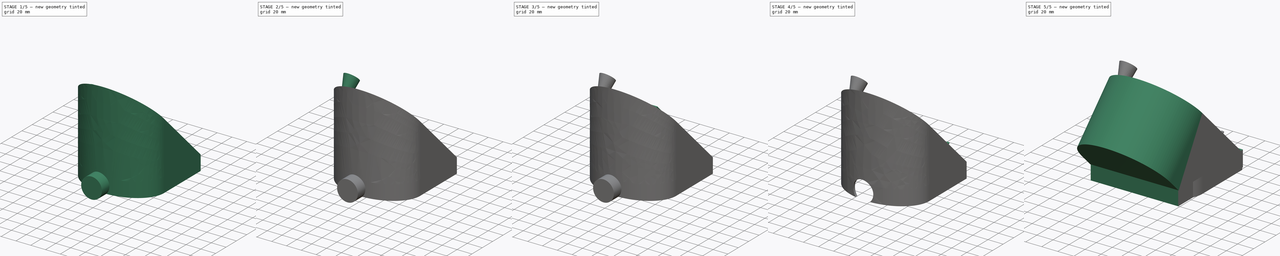
[diagram: build sequence overview — one tinted view per stage of 5, left to right]
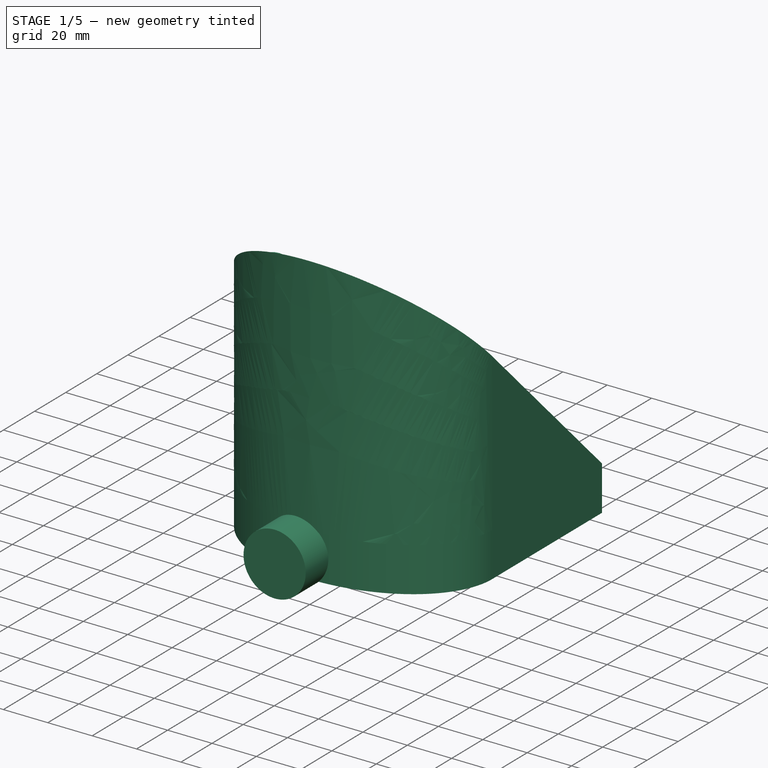
[diagram: stage 1 of 5 — iso view after this stage's code; geometry added in this stage tinted green]
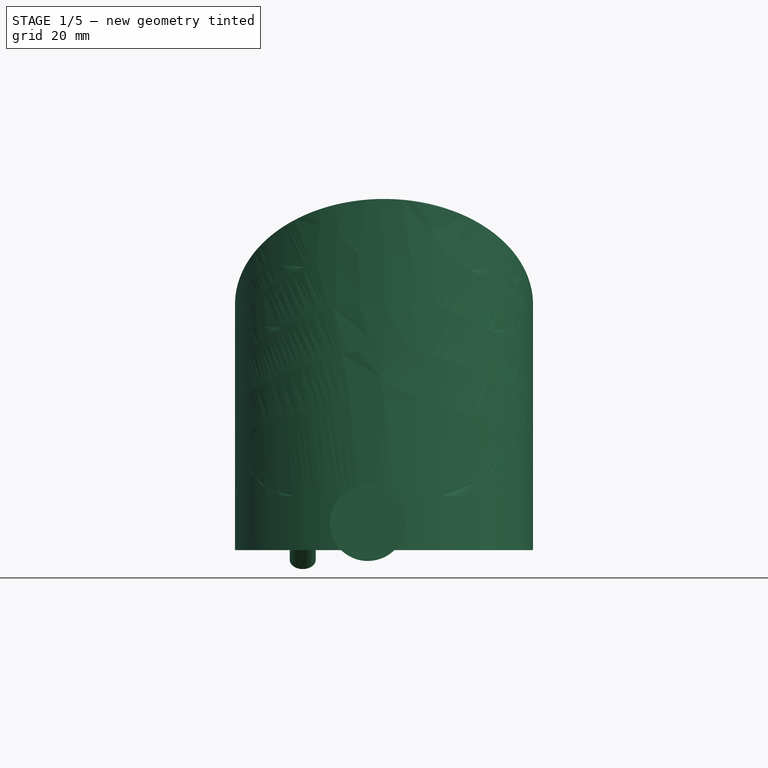
[diagram: stage 1 of 5 — front view after this stage's code; geometry added in this stage tinted green]
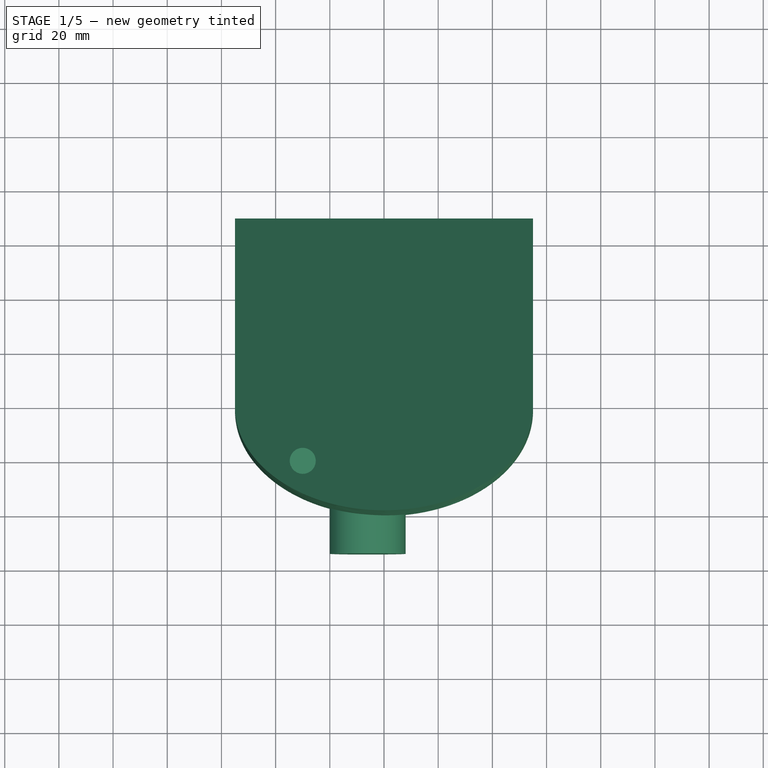
[diagram: stage 1 of 5 — top view after this stage's code; geometry added in this stage tinted green]
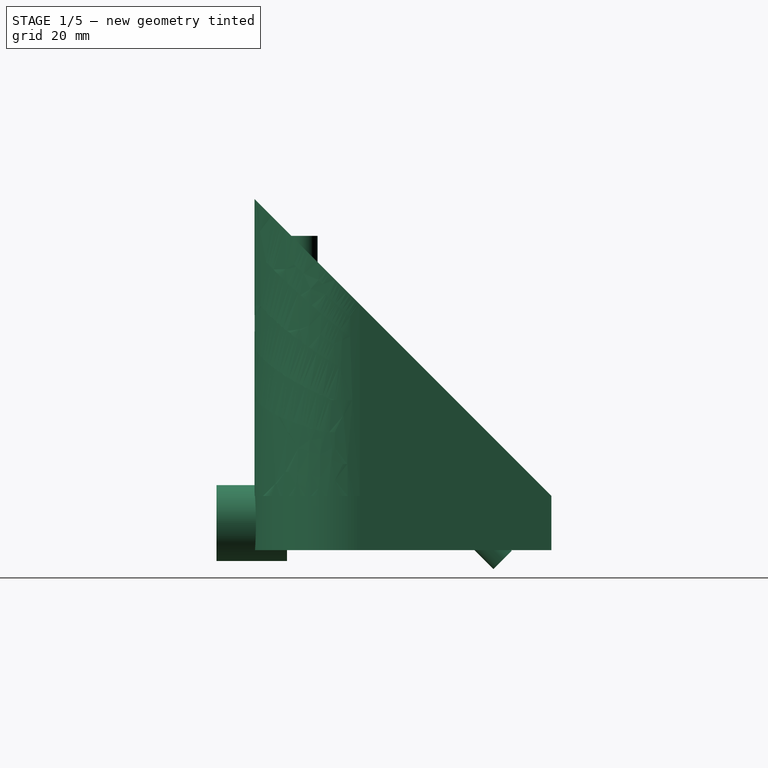
[diagram: stage 1 of 5 — right view after this stage's code; geometry added in this stage tinted green]
FCSTD DOCUMENT  (FreeCAD 0.15R4671 (Git))
Label: Carcasa modificada para sensor IR
License: All rights reserved
LicenseURL: http://en.wikipedia.org/wiki/All_rights_reserved
objects: Part::Box×10, Sketcher::SketchObject×10, Part::Cut×9, Part::Cylinder×8, Part::MultiFuse×8, PartDesign::Pocket×2, Part::Loft×2, Part::Sweep×2, Part::Circle×1, PartDesign::Pad×1, Part::FeaturePython×1
note: 57 computed .brp shape members not serialized (recipe doc carries the construction recipe); baked Part::Feature solids carry a one-line shape summary decoded from their .brp

FEATURE [PartDesign::Pocket] Pocket
  Length = 110
  Type = 0
FEATURE [Sketcher::SketchObject] Sketch011
  Placement = pos=(0,0,80) rot=(1,0,0;3.14159rad)
  sketch-geometry (1):
    g0: Circle CenterX=-30 CenterY=-18.5 CenterZ=0 NormalX=0 NormalY=0 NormalZ=1 Radius=4.8
  constraints (3):
    c: Radius(g0) = 4.8
    c: DistanceX(g0) = -30
    c: DistanceY(g0) = -18.5
FEATURE [Part::Cylinder] Cylinder003  label="Cilindro003"
  Angle = 360
  Height = 28
  Placement = pos=(-30,18.5,78) rot=(0,0,1;0rad)
  Radius = 4.8
FEATURE [Sketcher::SketchObject] Sketch012
  Placement = pos=(0,59.8185,59.8185) rot=(0,0.382683,0.92388;3.14159rad)
  sketch-geometry (16):
    g0: LineSegment StartX=2 StartY=-37 StartZ=0 EndX=30 EndY=-37 EndZ=0
    g1: LineSegment StartX=30 StartY=-37 StartZ=0 EndX=30 EndY=-53 EndZ=0
    g2: LineSegment StartX=30 StartY=-53 StartZ=0 EndX=2 EndY=-53 EndZ=0
    g3: LineSegment StartX=2 StartY=-53 StartZ=0 EndX=2 EndY=-37 EndZ=0
    g4: LineSegment StartX=40 StartY=-31 StartZ=0 EndX=46.8 EndY=-31 EndZ=0
    g5: LineSegment StartX=46.8 StartY=-31 StartZ=0 EndX=46.8 EndY=-37.8 EndZ=0
    g6: LineSegment StartX=46.8 StartY=-37.8 StartZ=0 EndX=40 EndY=-37.8 EndZ=0
    g7: LineSegment StartX=40 StartY=-37.8 StartZ=0 EndX=40 EndY=-31 EndZ=0
    g8: LineSegment StartX=40 StartY=-42 StartZ=0 EndX=46.8 EndY=-42 EndZ=0
    g9: LineSegment StartX=46.8 StartY=-42 StartZ=0 EndX=46.8 EndY=-48.8 EndZ=0
    g10: LineSegment StartX=46.8 StartY=-48.8 StartZ=0 EndX=40 EndY=-48.8 EndZ=0
    g11: LineSegment StartX=40 StartY=-48.8 StartZ=0 EndX=40 EndY=-42 EndZ=0
    g12: LineSegment StartX=40 StartY=-53 StartZ=0 EndX=46.8 EndY=-53 EndZ=0
    g13: LineSegment StartX=46.8 StartY=-53 StartZ=0 EndX=46.8 EndY=-59.8 EndZ=0
    g14: LineSegment StartX=46.8 StartY=-59.8 StartZ=0 EndX=40 EndY=-59.8 EndZ=0
    g15: LineSegment StartX=40 StartY=-59.8 StartZ=0 EndX=40 EndY=-53 EndZ=0
  constraints (48):
    c: Coincident(g0,g1)
    c: Coincident(g1,g2)
    c: Coincident(g2,g3)
    c: Coincident(g3,g0)
    c: Horizontal(g0)
    c: Horizontal(g2)
    c: Vertical(g1)
    c: Vertical(g3)
    c: DistanceX(g0) = 2
    c: DistanceX(g2) = -28
    c: DistanceY(g1) = -16
    c: DistanceY(g0) = -37
    c: Coincident(g4,g5)
    c: Coincident(g5,g6)
    c: Coincident(g6,g7)
    c: Coincident(g7,g4)
    c: Horizontal(g4)
    c: Horizontal(g6)
    c: Vertical(g5)
    c: Vertical(g7)
    c: Coincident(g8,g9)
    c: Coincident(g9,g10)
    c: Coincident(g10,g11)
    c: Coincident(g11,g8)
    c: Horizontal(g8)
    c: Horizontal(g10)
    c: Vertical(g9)
    c: Vertical(g11)
    c: Coincident(g12,g13)
    c: Coincident(g13,g14)
    c: Coincident(g14,g15)
    c: Coincident(g15,g12)
    c: Horizontal(g12)
    c: Horizontal(g14)
    c: Vertical(g13)
    c: Vertical(g15)
    c: DistanceX(g4) = 6.8
    c: DistanceY(g7) = 6.8
    c: DistanceY(g4) = -31
    c: DistanceX(g4) = 40
    c: DistanceX(g8) = 6.8
    c: DistanceY(g11) = 6.8
    c: DistanceX(g8) = 40
    c: DistanceY(g8) = -42
    c: DistanceX(g12) = 6.8
    c: DistanceY(g15) = 6.8
    c: DistanceY(g12) = -53
    c: DistanceX(g12) = 40
FEATURE [Sketcher::SketchObject] Sketch013
  Placement = pos=(0,0,10) rot=(1,0,0;3.14159rad)
  Support = -> Pocket [Face3]
  sketch-geometry (8):
    g0: ArcOfEllipse CenterX=0 CenterY=-38.9 CenterZ=0 NormalX=0 NormalY=0 NormalZ=1 MajorRadius=55 MinorRadius=38.7814 AngleXU=0 StartAngle=0 EndAngle=3.14159
    g1: LineSegment [constr] StartX=55 StartY=-38.9 StartZ=0 EndX=-55 EndY=-38.9 EndZ=0
    g2: LineSegment [constr] StartX=0 StartY=-0.118561 StartZ=0 EndX=0 EndY=-77.6814 EndZ=0
    g3: GeomPoint [constr] X=39 Y=-38.9 Z=0
    g4: GeomPoint [constr] X=-39 Y=-38.9 Z=0
    g5: LineSegment StartX=55 StartY=-38.9 StartZ=0 EndX=55 EndY=-109.6 EndZ=0
    g6: LineSegment StartX=55 StartY=-109.6 StartZ=0 EndX=-55 EndY=-109.6 EndZ=0
    g7: LineSegment StartX=-55 StartY=-109.6 StartZ=0 EndX=-55 EndY=-38.9 EndZ=0
  constraints (17):
    c: InternalAlignment(g1-g4 -> g0) x4
    c: Coincident(g0,g1)
    c: DistanceY(g0) = -38.9
    c: DistanceY(g0) = -38.9
    c: DistanceY(g0) = -38.9
    c: DistanceY(g4) = -38.9
    c: DistanceX(g0) = -55
    c: DistanceX(g0) = 55
    c: DistanceX(g3) = 39
    c: Coincident(g5,g6)
    c: Coincident(g6,g7)
    c: Horizontal(g6)
    c: Vertical(g5)
    c: Vertical(g7)
    c: Coincident(g0,g5)
    c: DistanceY(g7) = 70.7
    c: Coincident(g0,g7)
FEATURE [PartDesign::Pad] Pad
  Length = 20
  Length2 = 100
  Sketch = -> Sketch013
  Type = 0
FEATURE [Part::Sweep] Sweep001
  Frenet = false
  Sections = -> [Sketch011]
  Solid = true
  Spine = -> Sketch [Edge1,Edge2,Edge3]
  Transition = 1
FEATURE [Part::MultiFuse] Fusion006
  Shapes = -> [Sweep001,Cylinder003]
FEATURE [Part::Box] Box017  label="Cubo017"
  Height = 10.5
  Length = 7
  Placement = pos=(-27,37,34) rot=(-1,0,0;0.785398rad)
  Width = 6.1
FEATURE [Part::Cylinder] Cylinder007  label="Cilindro007"
  Angle = 360
  Height = 20
  Placement = pos=(-40,44.2,21.8) rot=(0,1,0;1.5708rad)
  Radius = 1.7
FEATURE [Part::MultiFuse] Fusion018
  Shapes = -> [Box017,Cylinder007]
FEATURE [Part::Cylinder] Cylinder008  label="Cilindro008"
  Angle = 360
  Height = 26
  Placement = pos=(-6,12,0) rot=(1,0,0;1.5708rad)
  Radius = 14
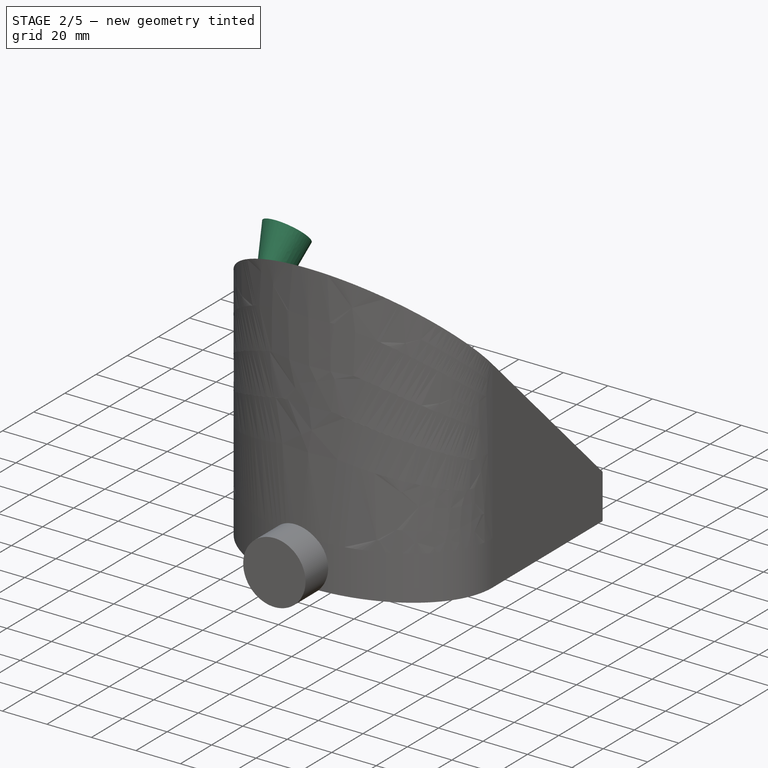
[diagram: stage 2 of 5 — iso view after this stage's code; geometry added in this stage tinted green]
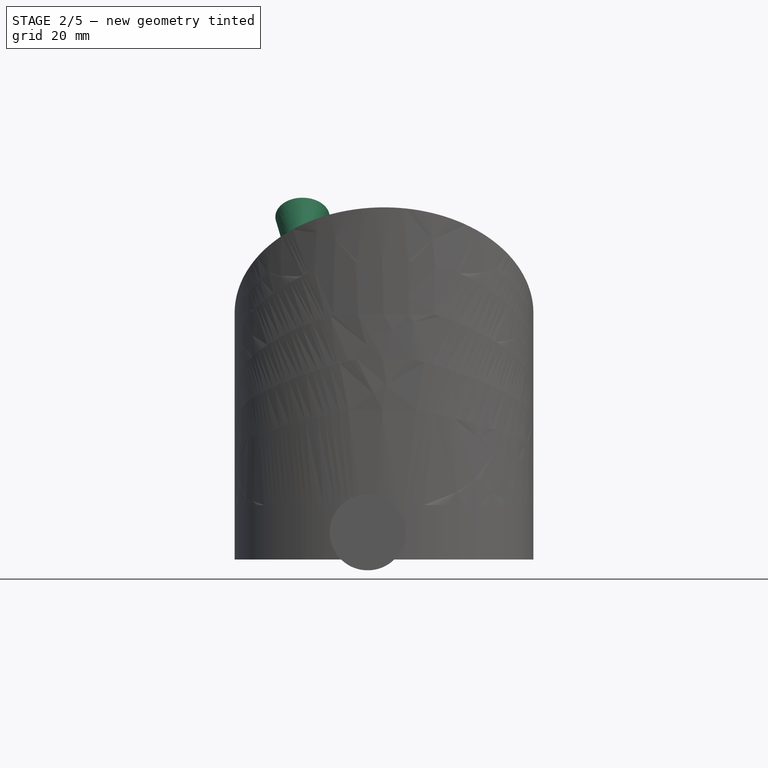
[diagram: stage 2 of 5 — front view after this stage's code; geometry added in this stage tinted green]
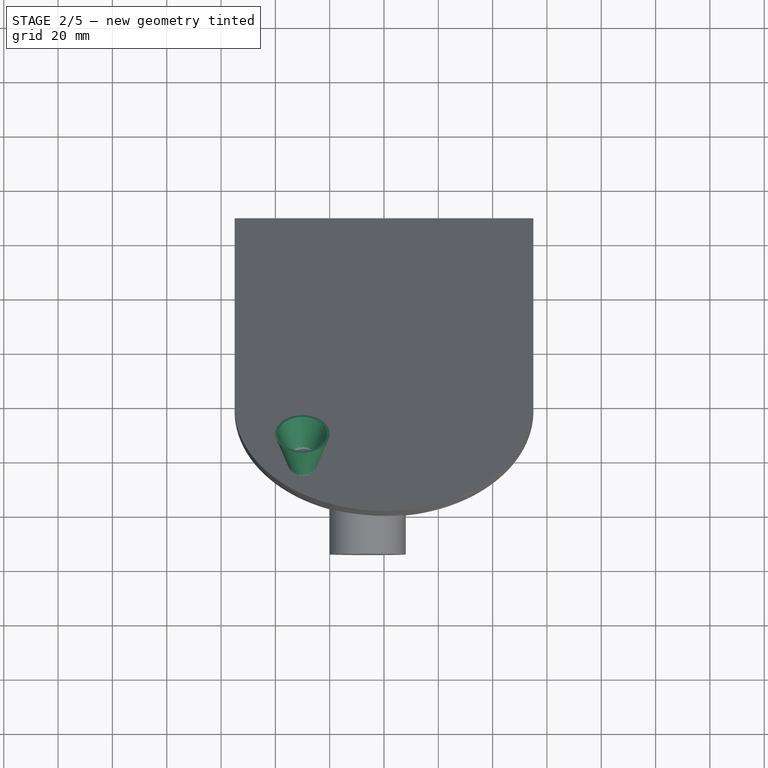
[diagram: stage 2 of 5 — top view after this stage's code; geometry added in this stage tinted green]
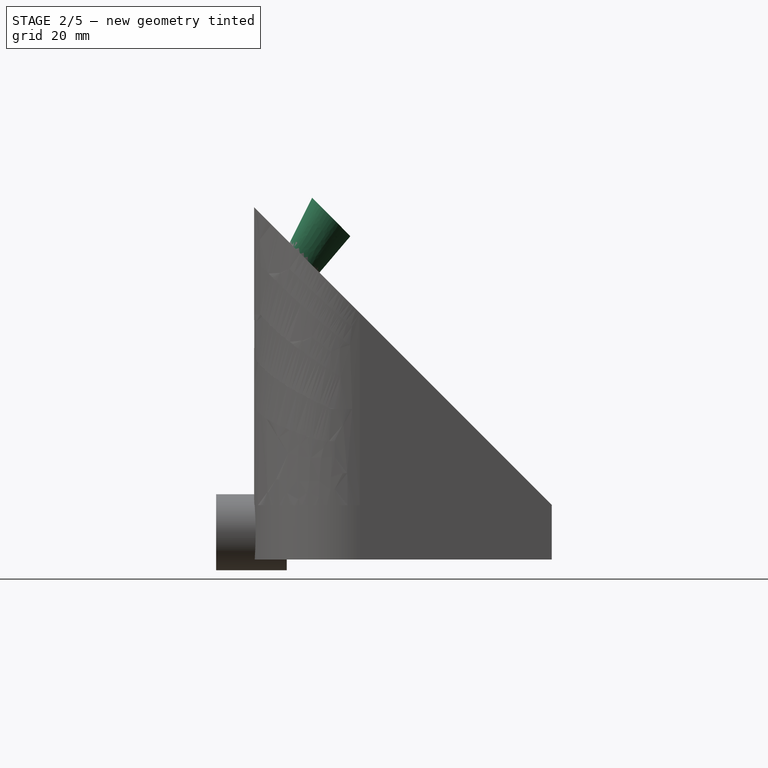
[diagram: stage 2 of 5 — right view after this stage's code; geometry added in this stage tinted green]
FEATURE [Part::Cylinder] Cylinder001  label="Cilindro001"
  Angle = 360
  Height = 30
  Placement = pos=(-30,18.5,80) rot=(0,0,1;0rad)
  Radius = 5.5
FEATURE [Part::Box] Box002  label="Cubo002"
  Height = 30
  Length = 200
  Placement = pos=(-101,0,119.5) rot=(-1,0,0;0.785398rad)
  Width = 200
FEATURE [Sketcher::SketchObject] Sketch003
  Placement = pos=(0,59.8185,59.8185) rot=(0,0.382683,0.92388;3.14159rad)
  sketch-geometry (8):
    g0: LineSegment StartX=-31 StartY=19.7 StartZ=0 EndX=11 EndY=19.7 EndZ=0
    g1: LineSegment StartX=-31 StartY=19.7 StartZ=0 EndX=-31 EndY=40.3 EndZ=0
    g2: LineSegment StartX=-31 StartY=40.3 StartZ=0 EndX=11 EndY=40.3 EndZ=0
    g3: LineSegment StartX=11 StartY=40.3 StartZ=0 EndX=11 EndY=34 EndZ=0
    g4: LineSegment StartX=11 StartY=26 StartZ=0 EndX=26 EndY=26 EndZ=0
    g5: LineSegment StartX=26 StartY=26 StartZ=0 EndX=26 EndY=34 EndZ=0
    g6: LineSegment StartX=26 StartY=34 StartZ=0 EndX=11 EndY=34 EndZ=0
    g7: LineSegment StartX=11 StartY=26 StartZ=0 EndX=11 EndY=19.7 EndZ=0
  constraints (24):
    c: Horizontal(g0)
    c: DistanceX(g0) = -31
    c: DistanceX(g0) = 11
    c: DistanceY(g0) = 19.7
    c: Vertical(g1)
    c: Coincident(g1,g2)
    c: Horizontal(g2)
    c: Coincident(g2,g3)
    c: Vertical(g3)
    c: Coincident(g0,g7)
    c: Coincident(g1,g0)
    c: Coincident(g4,g5)
    c: Coincident(g5,g6)
    c: Horizontal(g4)
    c: Horizontal(g6)
    c: Vertical(g5)
    c: DistanceY(g6) = 34
    c: DistanceX(g4) = 26
    c: PointOnObject(g3,g6)
    c: Coincident(g7,g4)
    c: Tangent(g3,g7)
    c: DistanceY(g2) = 40.3
    c: DistanceY(g4) = 26
    c: Coincident(g3,g6)
FEATURE [Part::Cut] Cut002  label="Tubo 2, mantener por si acaso"
  Base = -> Cylinder001
  Tool = -> Box002
FEATURE [Sketcher::SketchObject] Sketch006
  Placement = pos=(0,59.75,59.75) rot=(0,0.382683,0.92388;3.14159rad)
  Support = -> Cut002 [Face2]
  sketch-geometry (5):
    g0: Ellipse CenterX=30 CenterY=58.35 CenterZ=0 NormalX=0 NormalY=0 NormalZ=1 MajorRadius=7.75 MinorRadius=5.5 AngleXU=1.5708
    g1: LineSegment [constr] StartX=30 StartY=66.1 StartZ=0 EndX=30 EndY=50.6 EndZ=0
    g2: LineSegment [constr] StartX=24.5 StartY=58.35 StartZ=0 EndX=35.5 EndY=58.35 EndZ=0
    g3: GeomPoint [constr] X=30 Y=63.8101 Z=0
    g4: GeomPoint [constr] X=30 Y=52.8899 Z=0
  constraints (6):
    c: InternalAlignment(g1-g4 -> g0) x4
    c: DistanceX(g0) = 30
    c: DistanceY(g0) = 58.35
    c: DistanceY(g1) = 66.1
    c: DistanceY(g2) = 58.35
    c: DistanceX(g2) = 24.5
FEATURE [Part::Circle] Circle  label="Circunferencia"
  Angle0 = 0
  Angle1 = 360
  Placement = pos=(-30,28.39,116.11) rot=(-0.358158,-0.358158,-0.862233;1.71849rad)
  Radius = 10
FEATURE [Part::Loft] Loft
  Closed = false
  Ruled = false
  Sections = -> [Sketch006,Circle]
  Solid = true
FEATURE [Sketcher::SketchObject] Sketch007
  Placement = pos=(0,59.75,59.75) rot=(1,0,0;2.35619rad)
  Support = -> Loft [Face2]
  sketch-geometry (5):
    g0: Ellipse CenterX=-30 CenterY=58.4 CenterZ=0 NormalX=0 NormalY=0 NormalZ=1 MajorRadius=6.7 MinorRadius=4.8 AngleXU=1.5708
    g1: LineSegment [constr] StartX=-30 StartY=65.1 StartZ=0 EndX=-30 EndY=51.7 EndZ=0
    g2: LineSegment [constr] StartX=-34.8 StartY=58.4 StartZ=0 EndX=-25.2 EndY=58.4 EndZ=0
    g3: GeomPoint [constr] X=-30 Y=63.0744 Z=0
    g4: GeomPoint [constr] X=-30 Y=53.7256 Z=0
  constraints (6):
    c: InternalAlignment(g1-g4 -> g0) x4
    c: Horizontal(g2)
    c: DistanceX(g0) = -30
    c: DistanceX(g2) = -25.2
    c: DistanceY(g0) = 58.4
    c: DistanceY(g1) = 51.7
FEATURE [Sketcher::SketchObject] Sketch008
  Placement = pos=(-5.5495e-06,72.3062,72.0179) rot=(0,0.383606,0.923497;3.14159rad)
  Support = -> Loft [Face3]
  sketch-geometry (1):
    g0: Circle CenterX=30 CenterY=62.25 CenterZ=0 NormalX=0 NormalY=0 NormalZ=1 Radius=9
  constraints (3):
    c: DistanceX(g0) = 30
    c: DistanceY(g0) = 62.25
    c: Radius(g0) = 9
FEATURE [Part::Loft] Loft001
  Closed = false
  Ruled = false
  Sections = -> [Sketch008,Sketch007]
  Solid = true
FEATURE [Part::Cut] Cut003
  Base = -> Loft
  Tool = -> Loft001
FEATURE [Part::Cut] Cut007
  Base = -> Pad
  Tool = -> Fusion006
FEATURE [Part::MultiFuse] Fusion015
  Shapes = -> [Cut007,Cut003]
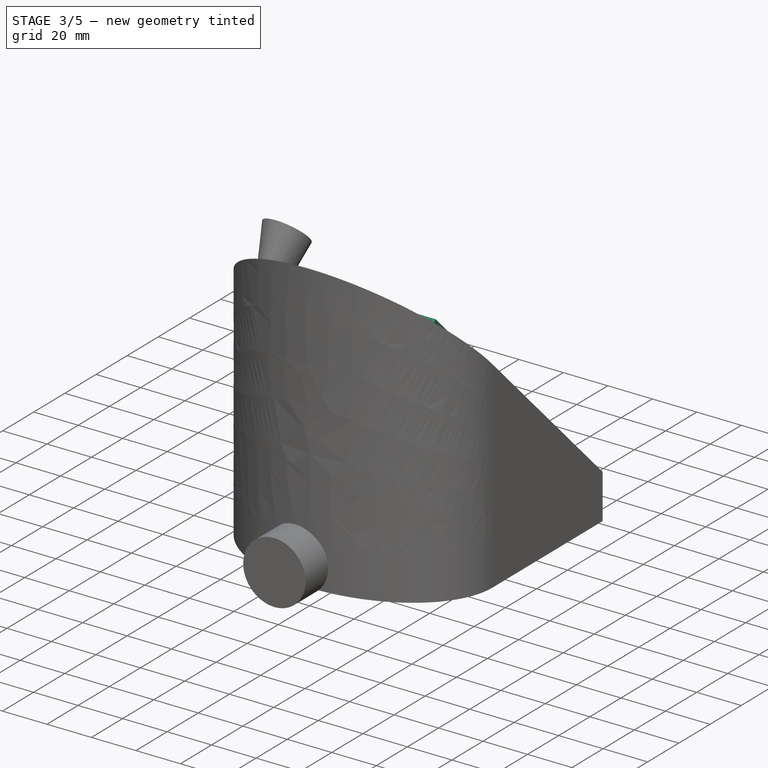
[diagram: stage 3 of 5 — iso view after this stage's code; geometry added in this stage tinted green]
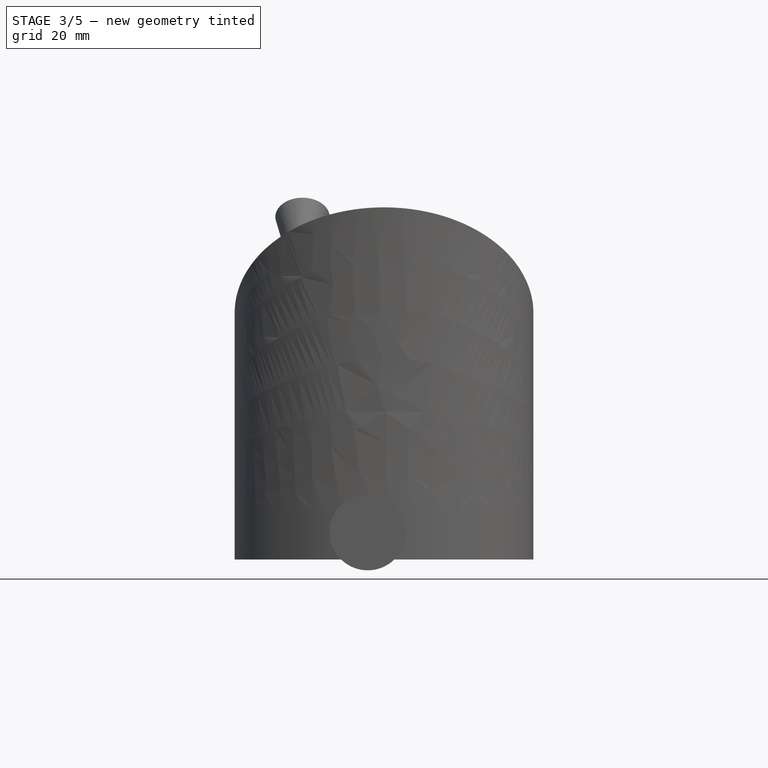
[diagram: stage 3 of 5 — front view after this stage's code; geometry added in this stage tinted green]
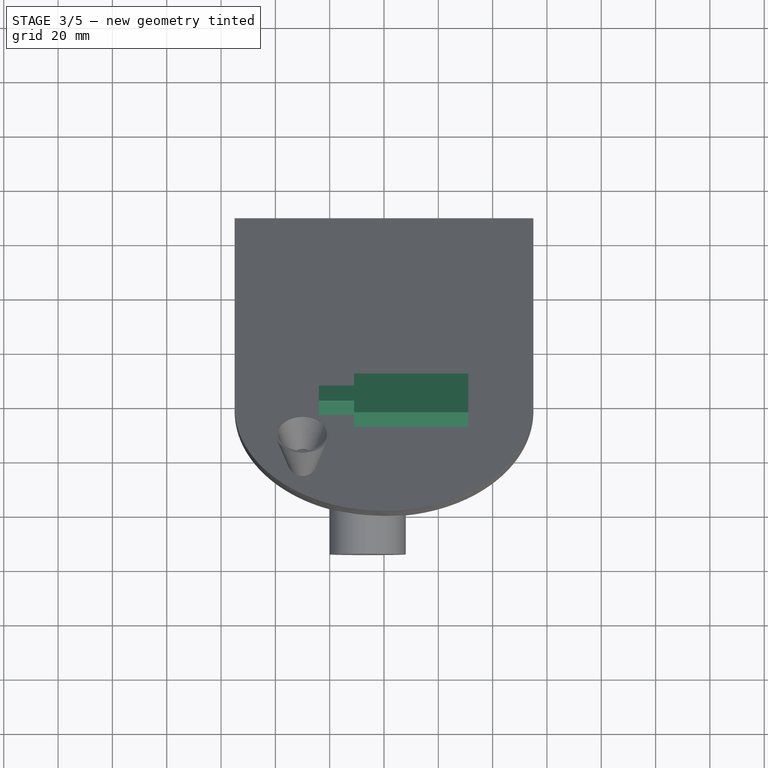
[diagram: stage 3 of 5 — top view after this stage's code; geometry added in this stage tinted green]
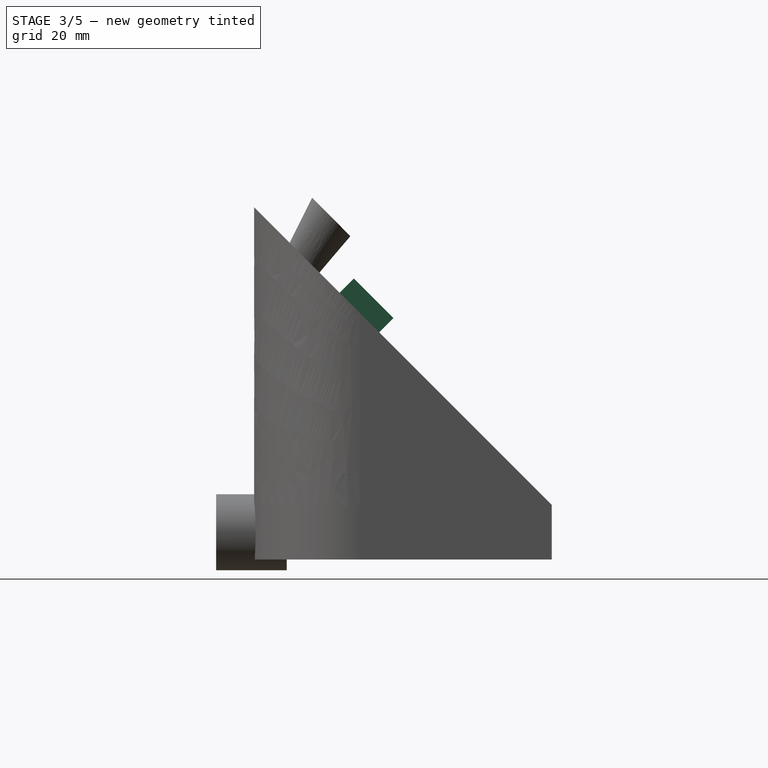
[diagram: stage 3 of 5 — right view after this stage's code; geometry added in this stage tinted green]
FEATURE [Part::FeaturePython] Clone  label="Clone of Pad"  # Draft clone (typed FeaturePython)
  Objects = -> [Pad]
  Placement = pos=(0,3,-1) rot=(0,1,0;3.14159rad)
  Scale = (0.95,0.95,-0.95)
FEATURE [Part::Box] Box008  label="Cubo008"
  Height = 130
  Length = 20
  Placement = pos=(-40,88.5,-26.2) rot=(1,0,0;0.785398rad)
  Width = 22
FEATURE [Part::Box] Box009  label="Cubo009"
  Height = 100
  Length = 140
  Placement = pos=(-55,-10,27) rot=(1,0,0;0.785398rad)
  Width = 100
FEATURE [Part::Box] Box011  label="Cubo011"
  Height = 20.6
  Length = 42
  Placement = pos=(-11,23,50.6) rot=(1,0,0;0.785398rad)
  Width = 40
FEATURE [Part::Box] Box012  label="Cubo012"
  Height = 8
  Length = 13
  Placement = pos=(-24,18.5,55) rot=(1,0,0;0.785398rad)
  Width = 40
FEATURE [Part::MultiFuse] Fusion011
  Shapes = -> [Box012,Box011]
FEATURE [Part::MultiFuse] Fusion014
  Shapes = -> [Box008,Box009]
FEATURE [Part::Cut] Cut006
  Base = -> Clone
  Tool = -> Fusion014
FEATURE [Part::Cut] Cut008
  Base = -> Fusion015
  Tool = -> Cut006
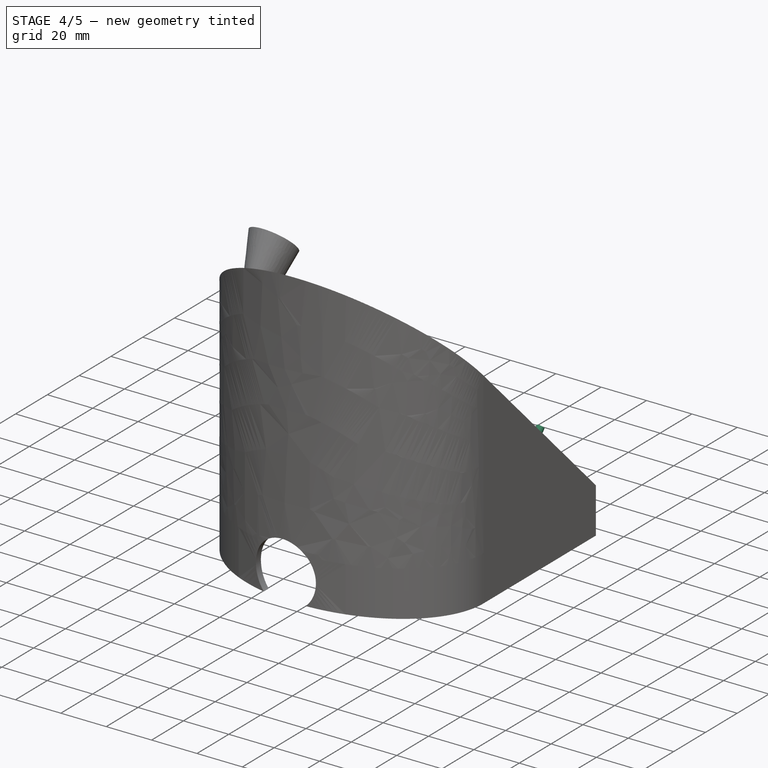
[diagram: stage 4 of 5 — iso view after this stage's code; geometry added in this stage tinted green]
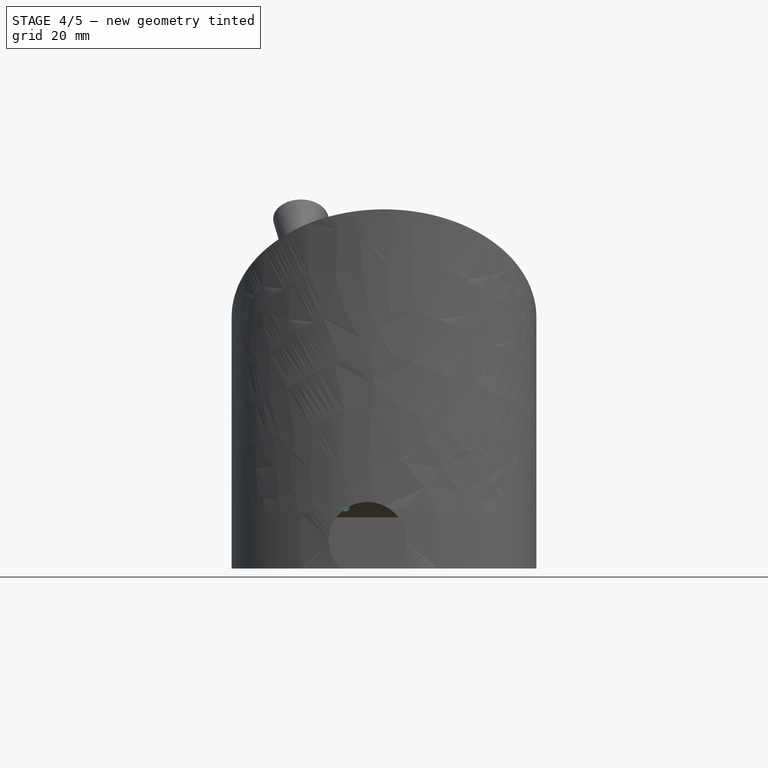
[diagram: stage 4 of 5 — front view after this stage's code; geometry added in this stage tinted green]
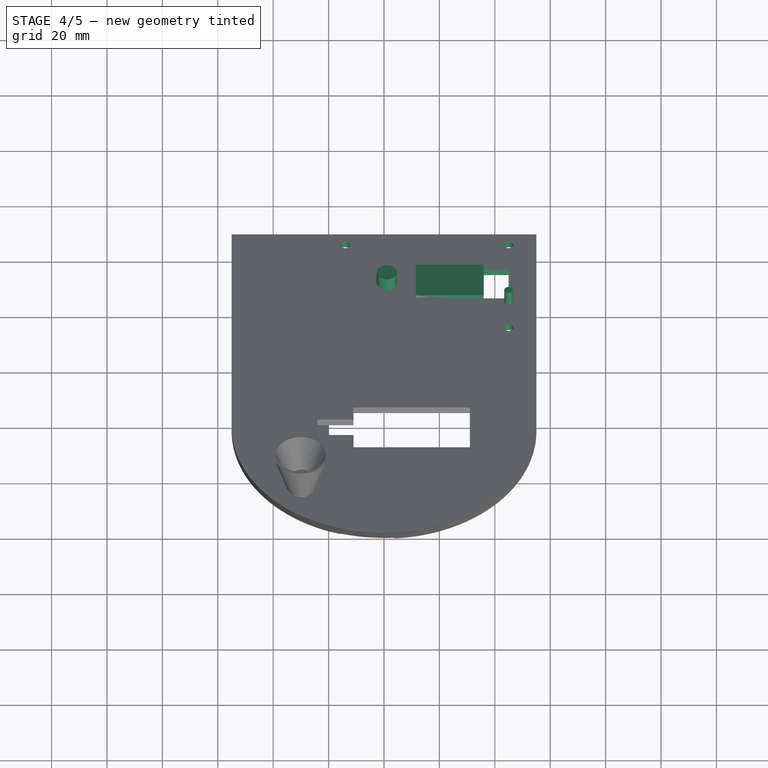
[diagram: stage 4 of 5 — top view after this stage's code; geometry added in this stage tinted green]
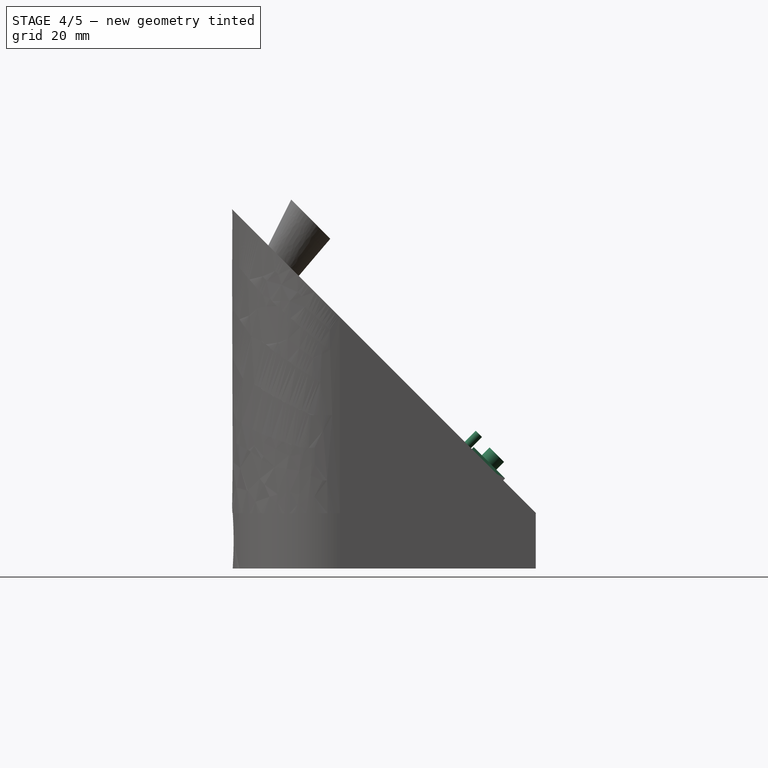
[diagram: stage 4 of 5 — right view after this stage's code; geometry added in this stage tinted green]
FEATURE [Part::Cut] Cut009
  Base = -> Cut008
  Tool = -> Fusion011
FEATURE [Part::Cylinder] Cylinder004  label="Cilindro004"
  Angle = 360
  Height = 10
  Placement = pos=(45,82,31.5) rot=(-1,0,0;0.785398rad)
  Radius = 1.6
FEATURE [Part::Cylinder] Cylinder005  label="Cilindro005"
  Angle = 360
  Height = 10
  Placement = pos=(45,82,31.5) rot=(-1,0,0;0.785398rad)
  Radius = 1.6
FEATURE [Part::Cylinder] Cylinder006  label="Cilindro006"
  Angle = 360
  Height = 10
  Placement = pos=(1,88.5,24) rot=(-1,0,0;0.785398rad)
  Radius = 3.7
FEATURE [Part::Box] Box016  label="Cubo016"
  Height = 16
  Length = 24.5
  Placement = pos=(11.5,95,19) rot=(1,0,0;0.785398rad)
  Width = 5
FEATURE [Sketcher::SketchObject] Sketch019
  Placement = pos=(0,59.8185,59.8185) rot=(0,0.382683,0.92388;3.14159rad)
  Support = -> Cut009 [Face1]
  sketch-geometry (8):
    g0: Circle CenterX=-45 CenterY=-22 CenterZ=0 NormalX=0 NormalY=0 NormalZ=1 Radius=1.7
    g1: Circle CenterX=-45 CenterY=-65 CenterZ=0 NormalX=0 NormalY=0 NormalZ=1 Radius=1.7
    g2: Circle CenterX=14 CenterY=-65 CenterZ=0 NormalX=0 NormalY=0 NormalZ=1 Radius=1.7
    g3: Circle CenterX=-1.24 CenterY=-44.68 CenterZ=0 NormalX=0 NormalY=0 NormalZ=1 Radius=3.4
    g4: LineSegment StartX=-45 StartY=-37.24 StartZ=0 EndX=-21 EndY=-37.24 EndZ=0
    g5: LineSegment StartX=-21 StartY=-37.24 StartZ=0 EndX=-21 EndY=-52.24 EndZ=0
    g6: LineSegment StartX=-21 StartY=-52.24 StartZ=0 EndX=-45 EndY=-52.24 EndZ=0
    g7: LineSegment StartX=-45 StartY=-52.24 StartZ=0 EndX=-45 EndY=-37.24 EndZ=0
  constraints (24):
    c: Radius(g1) = 1.7
    c: Radius(g0) = 1.7
    c: DistanceX(g-1,g0) = -45
    c: DistanceX(g-1,g1) = -45
    c: DistanceY(g1) = -65
    c: DistanceY(g0,g1) = -43
    c: Radius(g2) = 1.7
    c: DistanceX(g2,g1) = -59
    c: DistanceY(g2) = -65
    c: DistanceX(g3,g2) = 15.24
    c: Radius(g3) = 3.4
    c: Coincident(g4,g5)
    c: Coincident(g5,g6)
    c: Coincident(g6,g7)
    c: Coincident(g7,g4)
    c: Horizontal(g4)
    c: Horizontal(g6)
    c: Vertical(g5)
    c: Vertical(g7)
    c: DistanceX(g4) = 24
    c: DistanceY(g5) = -15
    c: DistanceY(g4,g0) = 15.24
    c: DistanceX(g1,g6) = 0
    c: DistanceY(g3,g2) = -20.32
FEATURE [PartDesign::Pocket] Pocket001
  Length = 3
  Sketch = -> Sketch019
  Type = 0
FEATURE [Part::Cut] Cut010
  Base = -> Pocket001
  Tool = -> Fusion018
FEATURE [Part::Cut] Cut011
  Base = -> Cut010
  Tool = -> Cylinder008
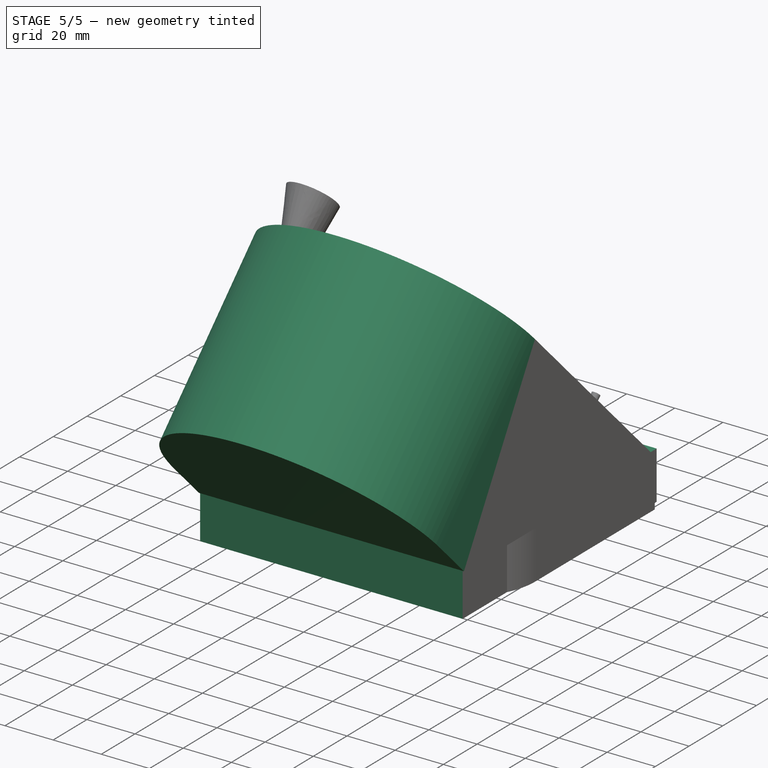
[diagram: stage 5 of 5 — iso view after this stage's code; geometry added in this stage tinted green]
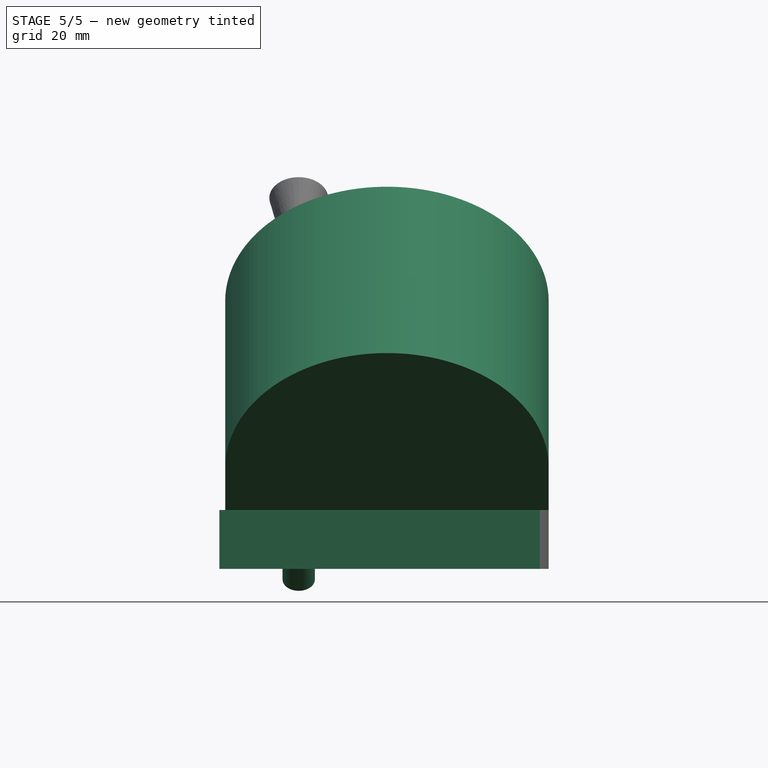
[diagram: stage 5 of 5 — front view after this stage's code; geometry added in this stage tinted green]
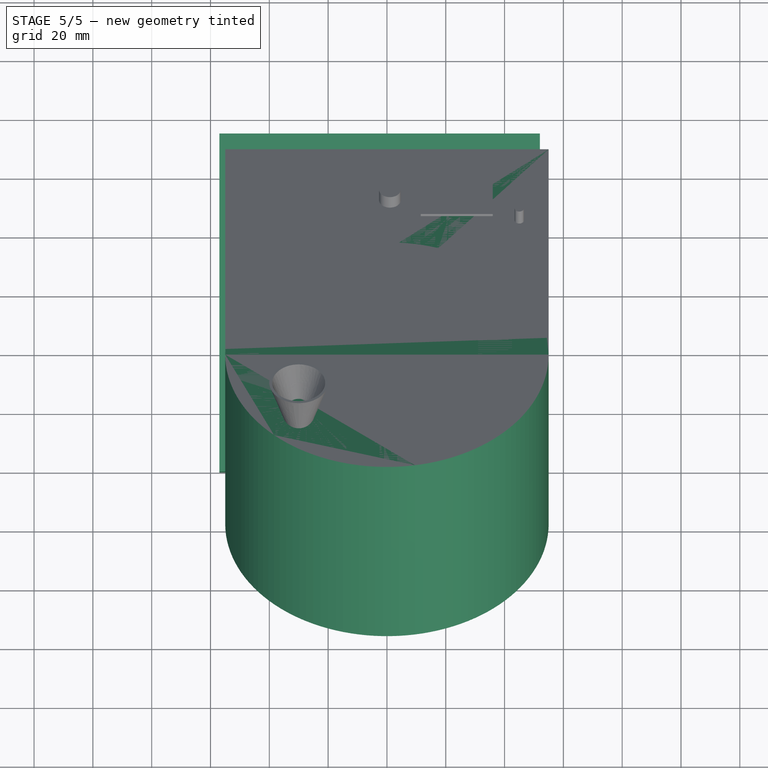
[diagram: stage 5 of 5 — top view after this stage's code; geometry added in this stage tinted green]
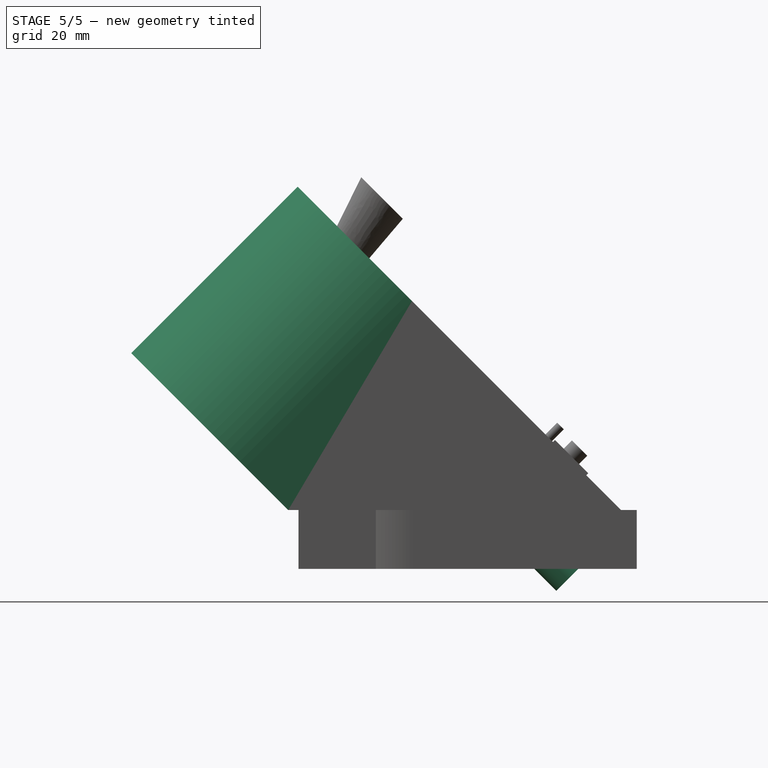
[diagram: stage 5 of 5 — right view after this stage's code; geometry added in this stage tinted green]
FEATURE [Part::Cylinder] Cylinder  label="Cilindro"
  Angle = 360
  Height = 80
  Placement = pos=(0,0,0) rot=(-1,0,0;0.785398rad)
  Radius = 55
FEATURE [Part::Box] Box  label="Cubo"
  Height = 80
  Length = 110
  Placement = pos=(-55,0,0) rot=(-1,0,0;0.785398rad)
  Width = 100.56
FEATURE [Part::Box] Box001  label="Cubo001"
  Height = 80
  Length = 110
  Placement = pos=(-55,-13,-70) rot=(0,0,1;0rad)
  Width = 133
FEATURE [Part::MultiFuse] Fusion
  Placement = pos=(0,-18,24.5) rot=(0,0,1;0rad)
  Shapes = -> [Box,Cylinder]
FEATURE [Part::Cut] Cut
  Base = -> Fusion
  Tool = -> Box001
FEATURE [Sketcher::SketchObject] Sketch  label="Trayectoria"
  Placement = pos=(-30,0,0) rot=(0.57735,0.57735,0.57735;2.0944rad)
  sketch-geometry (3):
    g0: LineSegment StartX=18.5 StartY=78 StartZ=0 EndX=18.5 EndY=72.935 EndZ=0
    g1: LineSegment StartX=28 StartY=50 StartZ=0 EndX=93 EndY=-15 EndZ=0
    g2: ArcOfCircle CenterX=50.935 CenterY=72.935 CenterZ=0 NormalX=0 NormalY=0 NormalZ=1 Radius=32.435 StartAngle=3.14159 EndAngle=3.92699
  constraints (9):
    c: Vertical(g0)
    c: Tangent(g0,g2) = -1.5708
    c: Tangent(g1,g2) = -1.5708
    c: DistanceX(g0) = 18.5
    c: DistanceY(g1,g1) = -65
    c: DistanceX(g1) = 93
    c: DistanceY(g1) = -15
    c: DistanceY(g0) = 78
    c: DistanceX(g1) = 28
FEATURE [Sketcher::SketchObject] Sketch009
  Placement = pos=(0,0,80) rot=(1,0,0;3.14159rad)
  sketch-geometry (1):
    g0: Circle CenterX=-30 CenterY=-18.5 CenterZ=0 NormalX=0 NormalY=0 NormalZ=1 Radius=5.5
  constraints (3):
    c: Radius(g0) = 5.5
    c: DistanceY(g0) = -18.5
    c: DistanceX(g0) = -30
FEATURE [Part::Sweep] Sweep  label="Tubo girado segun la trayectoria, mantener por si acaso"
  Frenet = false
  Sections = -> [Sketch009]
  Solid = true
  Spine = -> Sketch [Edge2,Edge1,Edge3]
  Transition = 1
FEATURE [Part::Box] Box003  label="Cubo003"
  Height = 20
  Length = 109
  Placement = pos=(-57,0,-10) rot=(0,0,1;0rad)
  Width = 115
FEATURE [Part::MultiFuse] Fusion016
  Shapes = -> [Cylinder004,Cylinder005]
FEATURE [Part::MultiFuse] Fusion017
  Shapes = -> [Box016,Fusion016,Cylinder006]
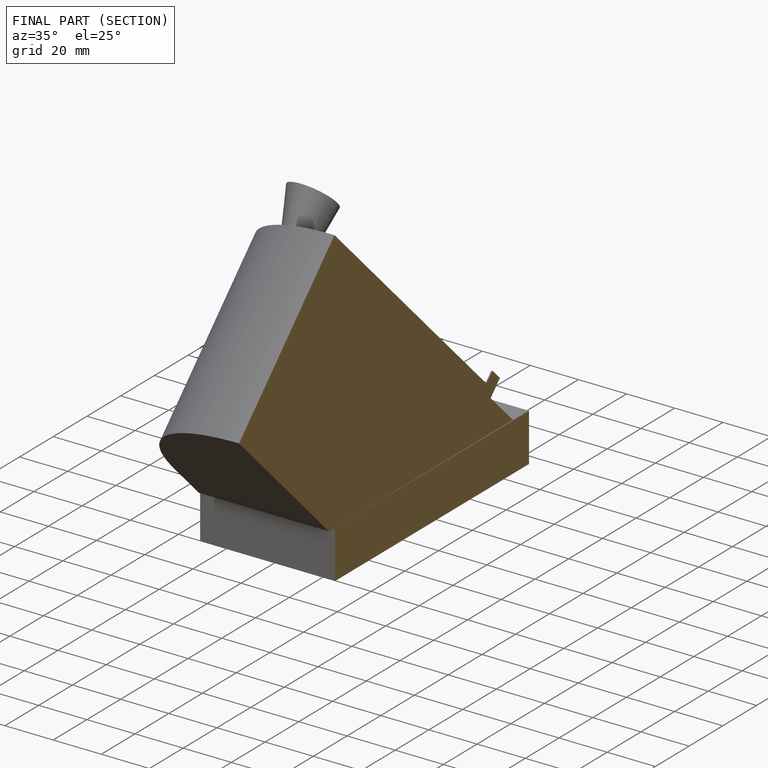
[diagram: finished part — half-section view (interior)]
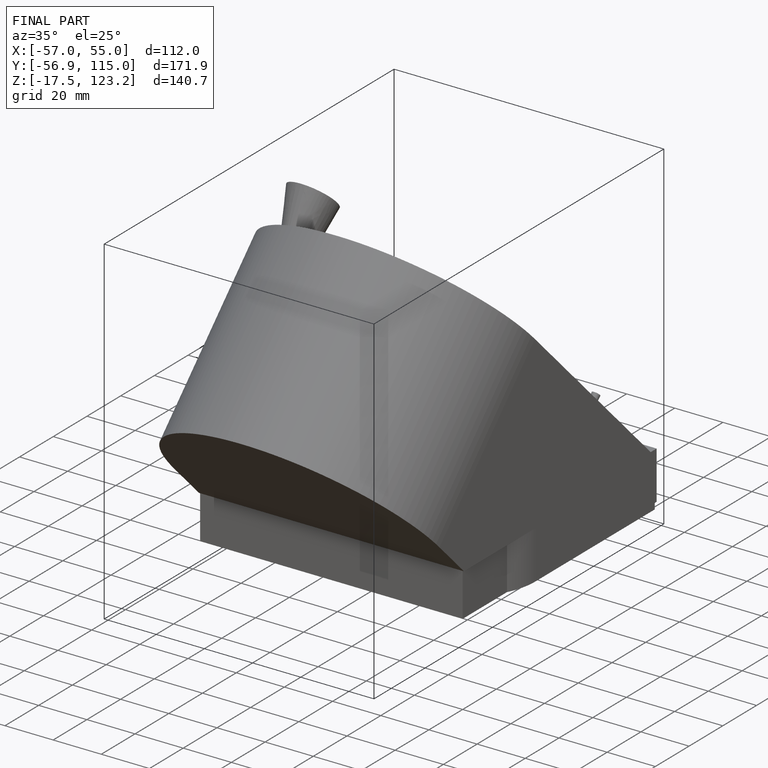
[diagram: finished part — iso view with bounding-box wireframe]
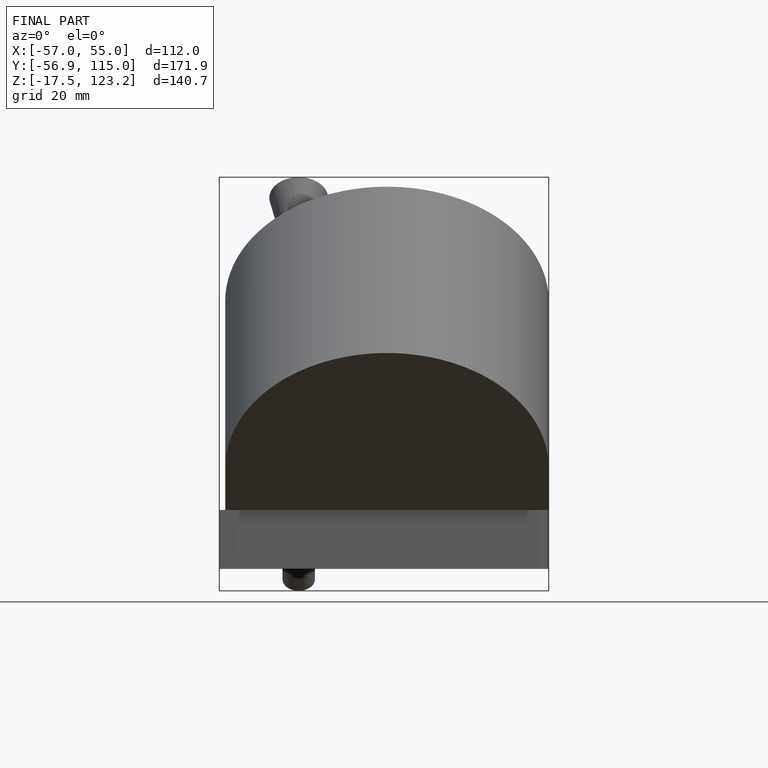
[diagram: finished part — front view with bounding-box wireframe]
